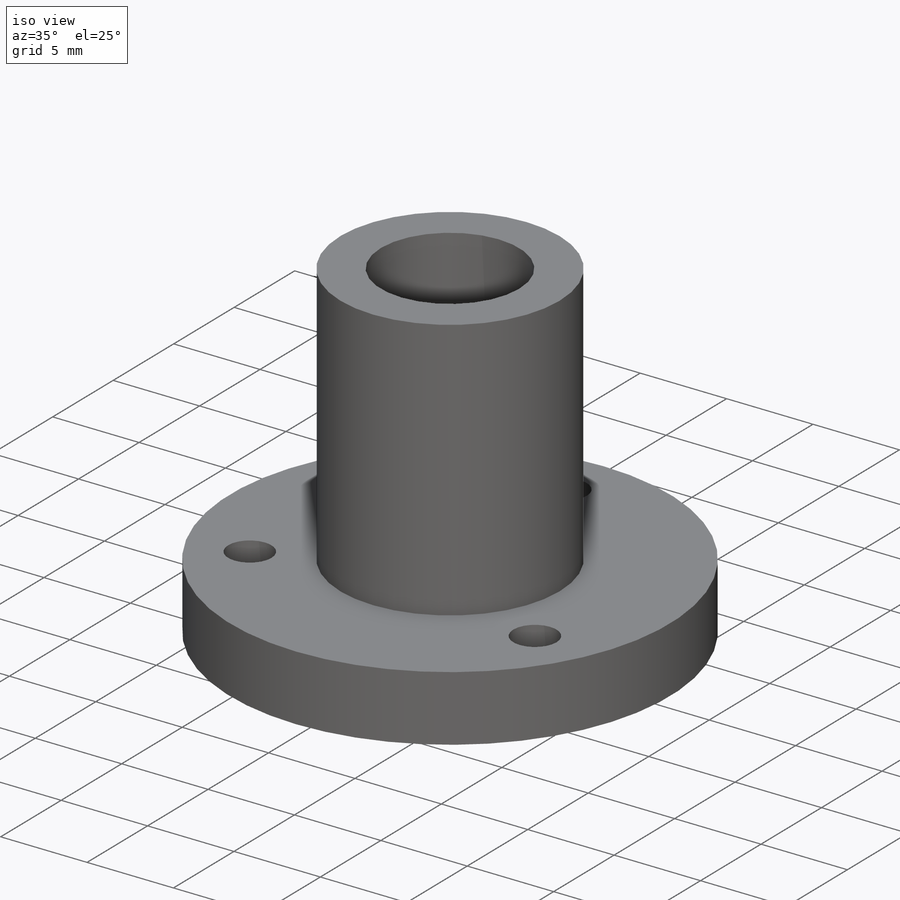
[diagram: iso view]
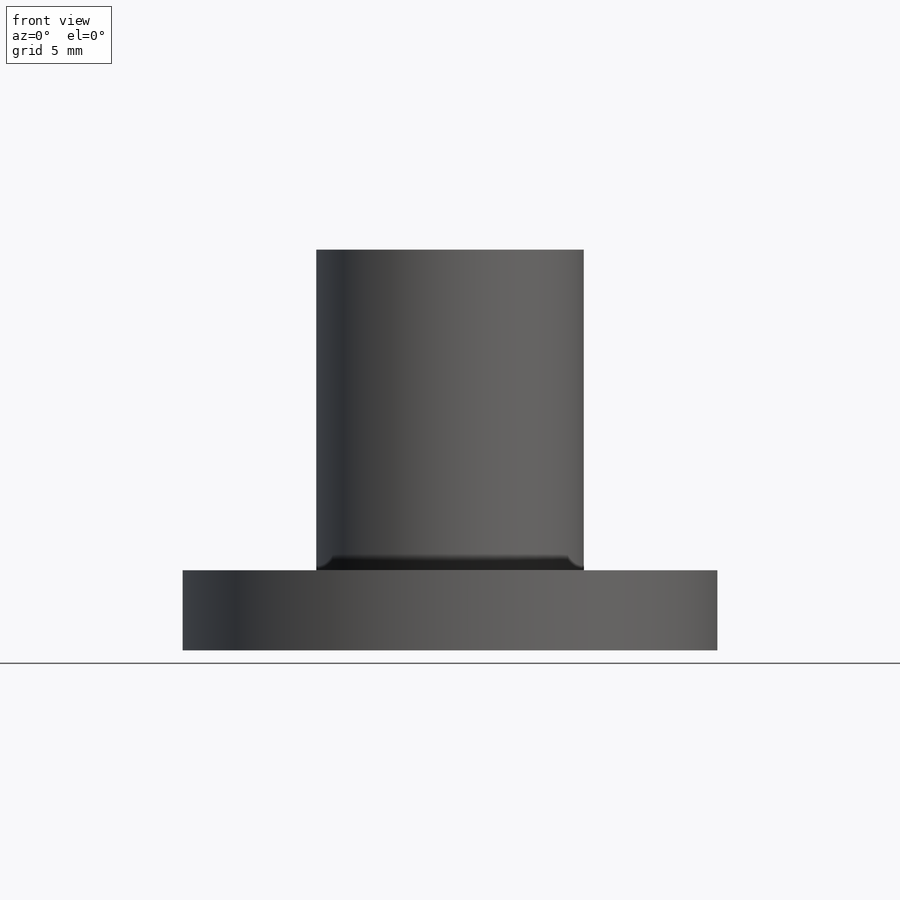
[diagram: front view]
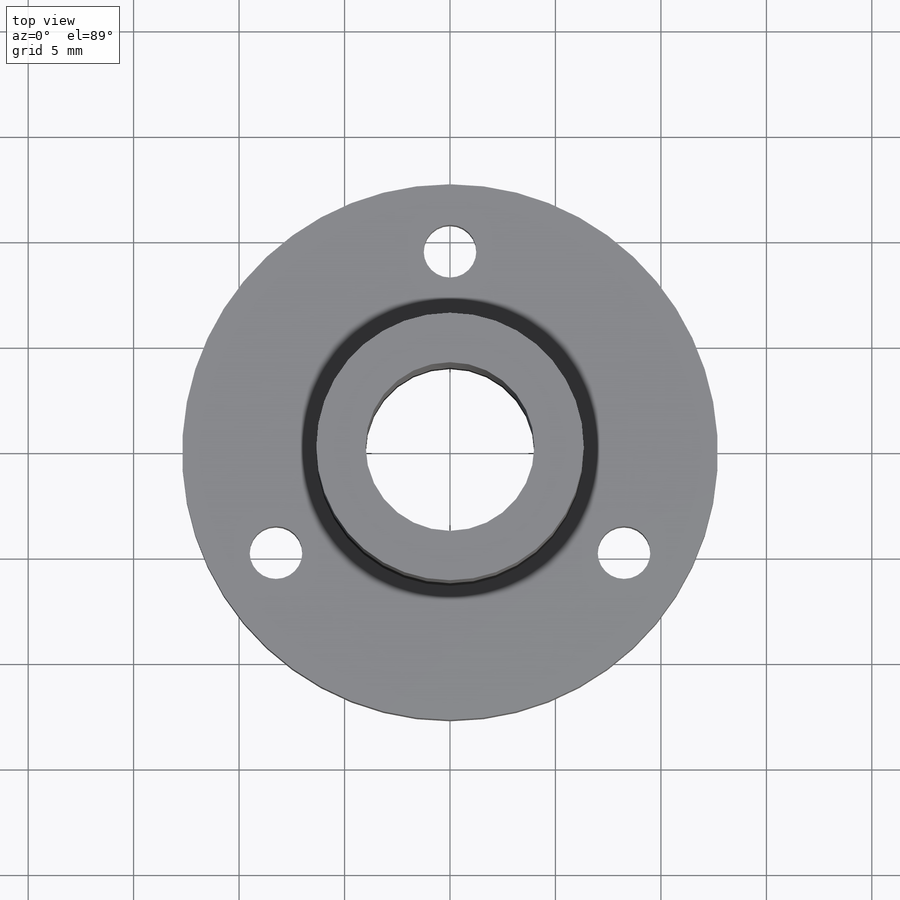
[diagram: top view]
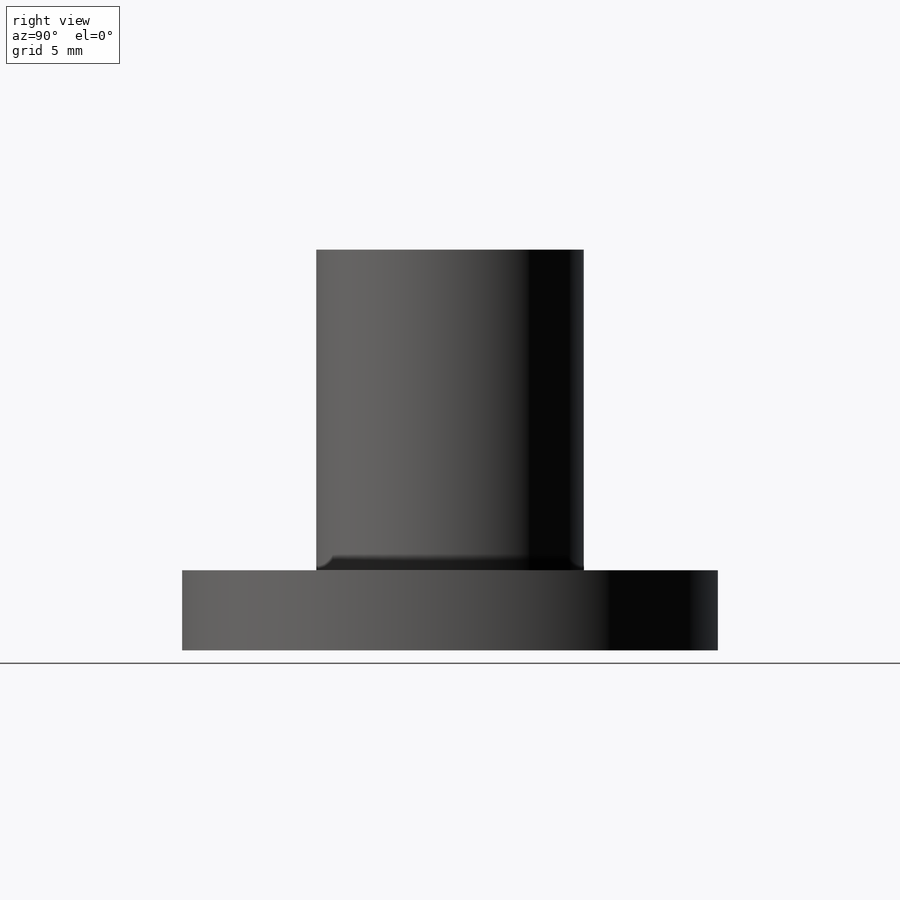
[diagram: right view]
SOLIDWORKS PART (.sldprt)
format: sldprt  version: not decoded by parser v0  size: 221,696 bytes
history: native  units: mm
features: sketch x5, extrude x2, material x1, hole x1 (+13 scaffold rows collapsed)
feature tree (22):
  scaffold x13  (default folders/planes/origin — collapsed)
  material  "ABS"
  sketch  "Sketch1"  dims[D1=8.0mm D2=25.4mm]
  extrude  "Boss-Extrude1"  Depth=3.8mm
  sketch  "Sketch2"  dims[D1=12.68mm]
  extrude  "Boss-Extrude2"  Depth=19mm
  sketch  "Sketch3"  dims[D1=3.2mm D3=16.5mm D2=3.0]
  hole  "Tap Drill for M3 Tap1"  Diameter=2.5mm Depth=3.8mm
  sketch  "3DSketch1"
  sketch  "Sketch4"  dims[hole-wizard template sketch: 60 standard entries collapsed; hole parameters kept: c18.Thru Hole Depth=3.8mm]
decode coverage: 7 of 8 modeling features carry decoded parameters
note: ~ marks probable driven/reference dimensions
note: suppression state not decoded; provenance and decode notes live in map.json
